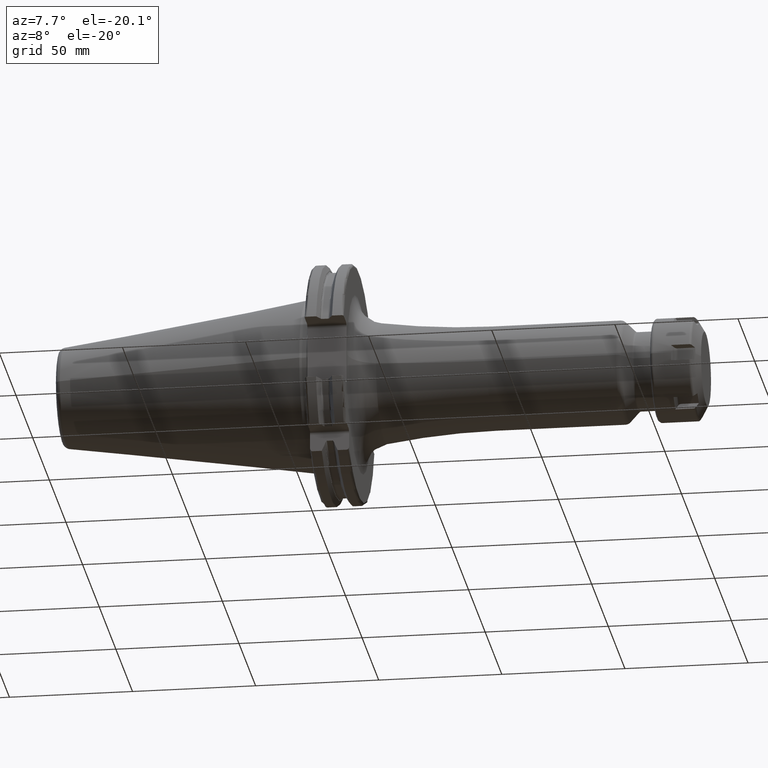
[diagram: clean part render]
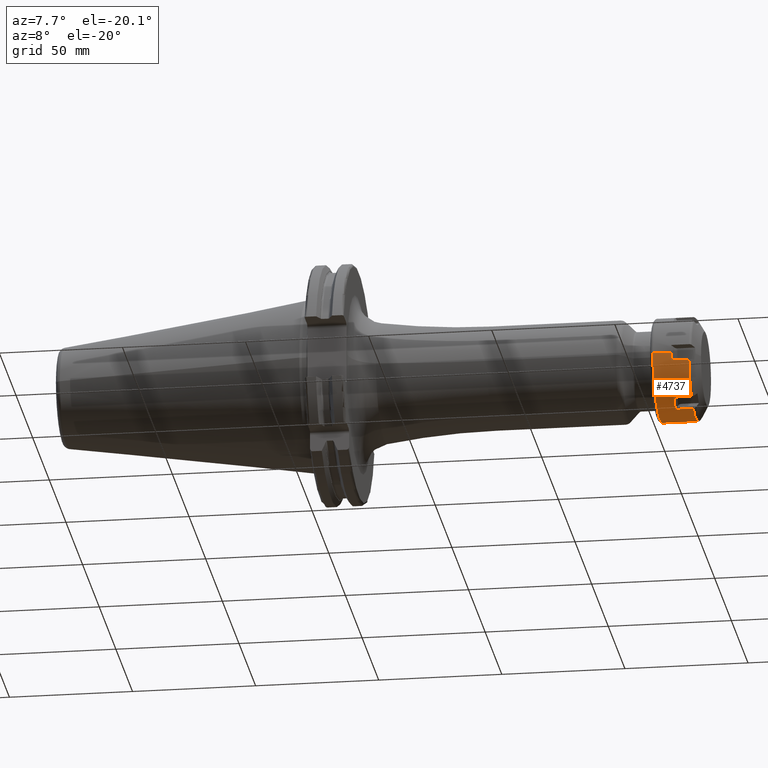
[diagram: same view with one face highlighted and labeled with its STEP entity id]
A machine part, auxiliary view. The second image highlights one B-rep face of the part: STEP entity #4737.
In plain terms, the highlighted cylindrical surface (partial cylindrical patch) has radius 21 mm, axis along (1, 0, 0).
Its self-contained STEP definition (entity closure, byte-faithful):
#3461=DIRECTION('',(9.999999999979E-1,1.452794262624E-6,-1.445246504649E-6));
#3462=VECTOR('',#3461,7.214202484702E0);
#3463=CARTESIAN_POINT('',(8.600008063689E0,7.578287451463E0,-1.958491746355E1));
#3464=LINE('',#3463,#3462);
#3477=DIRECTION('',(-1.E0,0.E0,0.E0));
#3478=VECTOR('',#3477,7.214210890546E0);
#3479=CARTESIAN_POINT('',(1.581421054838E1,1.317189611779E1,-1.635546247167E1));
#3480=LINE('',#3479,#3478);
#3559=CARTESIAN_POINT('',(1.581421054838E1,-1.317189611779E1,
-1.635546247167E1));
#3579=CARTESIAN_POINT('',(1.581421054838E1,-2.075019405E1,-3.229465418179E0));
#3581=CARTESIAN_POINT('',(1.581421054838E1,7.578297932215E0,-1.958492788985E1));
#3601=CARTESIAN_POINT('',(1.581421054838E1,-7.578297932215E0,
-1.958492788985E1));
#3609=CARTESIAN_POINT('',(1.581421054838E1,1.317189611779E1,-1.635546247167E1));
#3611=CARTESIAN_POINT('',(1.581421054838E1,2.075019405E1,-3.229465418179E0));
#3771=DIRECTION('',(-1.E0,3.594961594389E-14,0.E0));
#3772=VECTOR('',#3771,7.214210548375E0);
#3773=CARTESIAN_POINT('',(1.581421054838E1,-2.075019405E1,-3.229465418179E0));
#3774=LINE('',#3773,#3772);
#3786=CARTESIAN_POINT('',(1.581421054838E1,-1.792614389339E-14,0.E0));
#3787=DIRECTION('',(-1.E0,0.E0,0.E0));
#3788=DIRECTION('',(0.E0,9.881044785716E-1,-1.537840675323E-1));
#3789=AXIS2_PLACEMENT_3D('',#3786,#3787,#3788);
#3791=CARTESIAN_POINT('',(8.6E0,0.E0,0.E0));
#3792=DIRECTION('',(-1.E0,0.E0,0.E0));
#3793=DIRECTION('',(0.E0,1.E0,0.E0));
#3794=AXIS2_PLACEMENT_3D('',#3791,#3792,#3793);
#3796=DIRECTION('',(-1.E0,9.411549393136E-12,6.000804948597E-11));
#3797=VECTOR('',#3796,7.350000000040E0);
#3798=CARTESIAN_POINT('',(8.600000000040E0,2.099999999993E1,
-4.377820052165E-10));
#3799=LINE('',#3798,#3797);
#3800=CARTESIAN_POINT('',(1.25E0,0.E0,0.E0));
#3801=DIRECTION('',(-1.E0,0.E0,0.E0));
#3802=DIRECTION('',(0.E0,1.E0,0.E0));
#3803=AXIS2_PLACEMENT_3D('',#3800,#3801,#3802);
#3805=DIRECTION('',(-1.E0,-9.436200875805E-12,-6.000654573246E-11));
#3806=VECTOR('',#3805,7.350000000040E0);
#3807=CARTESIAN_POINT('',(8.600000000040E0,-2.099999999993E1,
4.377679851591E-10));
#3808=LINE('',#3807,#3806);
#3809=CARTESIAN_POINT('',(8.6E0,0.E0,0.E0));
#3810=DIRECTION('',(-1.E0,0.E0,0.E0));
#3811=DIRECTION('',(0.E0,-9.881044785716E-1,-1.537840675323E-1));
#3812=AXIS2_PLACEMENT_3D('',#3809,#3810,#3811);
#3814=CARTESIAN_POINT('',(1.581421054838E1,-1.792614389339E-14,0.E0));
#3815=DIRECTION('',(-1.E0,0.E0,0.E0));
#3816=DIRECTION('',(0.E0,-6.272331484661E-1,-7.788315462700E-1));
#3817=AXIS2_PLACEMENT_3D('',#3814,#3815,#3816);
#3819=CARTESIAN_POINT('',(1.581421054838E1,-1.792614389339E-14,0.E0));
#3820=DIRECTION('',(-1.E0,0.E0,0.E0));
#3821=DIRECTION('',(0.E0,3.608713301055E-1,-9.326156138023E-1));
#3822=AXIS2_PLACEMENT_3D('',#3819,#3820,#3821);
#3841=CARTESIAN_POINT('',(8.600000318507E0,-1.804967895792E-5,
1.352930437069E-5));
#3842=DIRECTION('',(-1.E0,0.E0,0.E0));
#3843=DIRECTION('',(0.E0,6.272333551021E-1,-7.788313798553E-1));
#3844=AXIS2_PLACEMENT_3D('',#3841,#3842,#3843);
#3860=DIRECTION('',(1.E0,0.E0,0.E0));
#3861=VECTOR('',#3860,7.214210548375E0);
#3862=CARTESIAN_POINT('',(8.6E0,2.075019405E1,-3.229465418179E0));
#3863=LINE('',#3862,#3861);
#4085=DIRECTION('',(9.999999999998E-1,6.709444709144E-7,9.098406604267E-8));
#4086=VECTOR('',#4085,7.214212575504E0);
#4087=CARTESIAN_POINT('',(8.599997972873E0,-1.317190095812E1,
-1.635546312805E1));
#4088=LINE('',#4087,#4086);
#4101=DIRECTION('',(-1.E0,0.E0,0.E0));
#4102=VECTOR('',#4101,7.214210815093E0);
#4103=CARTESIAN_POINT('',(1.581421054838E1,-7.578297932215E0,
-1.958492788985E1));
#4104=LINE('',#4103,#4102);
#4134=CARTESIAN_POINT('',(8.600000222181E0,-7.035000469932E-6,
-1.879731692430E-6));
#4135=DIRECTION('',(-1.E0,0.E0,0.E0));
#4136=DIRECTION('',(0.E0,-3.608710688571E-1,-9.326157148911E-1));
#4137=AXIS2_PLACEMENT_3D('',#4134,#4135,#4136);
#4153=CARTESIAN_POINT('',(1.25E0,2.1E1,0.E0));
#4154=CARTESIAN_POINT('',(1.25E0,-2.1E1,0.E0));
#4155=VERTEX_POINT('',#4153);
#4156=VERTEX_POINT('',#4154);
#4163=VERTEX_POINT('',#3611);
#4164=CARTESIAN_POINT('',(8.6E0,2.1E1,0.E0));
#4165=CARTESIAN_POINT('',(8.6E0,2.075019405E1,-3.229465418179E0));
#4166=VERTEX_POINT('',#4164);
#4167=VERTEX_POINT('',#4165);
#4208=VERTEX_POINT('',#3579);
#4209=CARTESIAN_POINT('',(8.6E0,-2.1E1,0.E0));
#4211=VERTEX_POINT('',#4209);
#4213=CARTESIAN_POINT('',(8.6E0,-2.075019405E1,-3.229465418179E0));
#4214=VERTEX_POINT('',#4213);
#4223=VERTEX_POINT('',#3559);
#4224=VERTEX_POINT('',#3601);
#4225=CARTESIAN_POINT('',(8.600000222181E0,-7.578297626635E0,
-1.958492710012E1));
#4226=CARTESIAN_POINT('',(8.600000222181E0,-1.317189658068E1,
-1.635546304645E1));
#4227=VERTEX_POINT('',#4225);
#4228=VERTEX_POINT('',#4226);
#4237=VERTEX_POINT('',#3581);
#4238=VERTEX_POINT('',#3609);
#4239=CARTESIAN_POINT('',(8.600000318507E0,1.317189540004E1,-1.635546158045E1));
#4240=CARTESIAN_POINT('',(8.600000318507E0,7.578298503418E0,-1.958492936603E1));
#4241=VERTEX_POINT('',#4239);
#4242=VERTEX_POINT('',#4240);
#4704=CARTESIAN_POINT('',(-1.E0,0.E0,0.E0));
#4705=DIRECTION('',(1.E0,0.E0,0.E0));
#4706=DIRECTION('',(0.E0,-1.E0,0.E0));
#4707=AXIS2_PLACEMENT_3D('',#4704,#4705,#4706);
#4708=CYLINDRICAL_SURFACE('',#4707,2.1E1);
#4710=ORIENTED_EDGE('',*,*,#4709,.F.);
#4711=ORIENTED_EDGE('',*,*,#4383,.F.);
#4712=ORIENTED_EDGE('',*,*,#4488,.F.);
#4714=ORIENTED_EDGE('',*,*,#4713,.F.);
#4716=ORIENTED_EDGE('',*,*,#4715,.F.);
#4718=ORIENTED_EDGE('',*,*,#4717,.T.);
#4720=ORIENTED_EDGE('',*,*,#4719,.T.);
#4722=ORIENTED_EDGE('',*,*,#4721,.F.);
#4724=ORIENTED_EDGE('',*,*,#4723,.F.);
#4725=ORIENTED_EDGE('',*,*,#4684,.F.);
#4726=ORIENTED_EDGE('',*,*,#4457,.F.);
#4728=ORIENTED_EDGE('',*,*,#4727,.F.);
#4730=ORIENTED_EDGE('',*,*,#4729,.F.);
#4732=ORIENTED_EDGE('',*,*,#4731,.F.);
#4733=ORIENTED_EDGE('',*,*,#4471,.F.);
#4734=ORIENTED_EDGE('',*,*,#4307,.F.);
#4735=EDGE_LOOP('',(#4710,#4711,#4712,#4714,#4716,#4718,#4720,#4722,#4724,#4725,
#4726,#4728,#4730,#4732,#4733,#4734));
#4736=FACE_OUTER_BOUND('',#4735,.F.);
#4737=ADVANCED_FACE('',(#4736),#4708,.T.);
#3790=CIRCLE('',#3789,2.1E1);
#3795=CIRCLE('',#3794,2.1E1);
#3804=CIRCLE('',#3803,2.1E1);
#3813=CIRCLE('',#3812,2.1E1);
#3818=CIRCLE('',#3817,2.1E1);
#3823=CIRCLE('',#3822,2.1E1);
#3845=CIRCLE('',#3844,2.100002071410E1);
#4138=CIRCLE('',#4137,2.099999486142E1);
#4307=EDGE_CURVE('',#4242,#4237,#3464,.T.);
#4383=EDGE_CURVE('',#4238,#4241,#3480,.T.);
#4457=EDGE_CURVE('',#4223,#4208,#3818,.T.);
#4471=EDGE_CURVE('',#4237,#4224,#3823,.T.);
#4488=EDGE_CURVE('',#4163,#4238,#3790,.T.);
#4684=EDGE_CURVE('',#4208,#4214,#3774,.T.);
#4709=EDGE_CURVE('',#4241,#4242,#3845,.T.);
#4713=EDGE_CURVE('',#4167,#4163,#3863,.T.);
#4715=EDGE_CURVE('',#4166,#4167,#3795,.T.);
#4717=EDGE_CURVE('',#4166,#4155,#3799,.T.);
#4719=EDGE_CURVE('',#4155,#4156,#3804,.T.);
#4721=EDGE_CURVE('',#4211,#4156,#3808,.T.);
#4723=EDGE_CURVE('',#4214,#4211,#3813,.T.);
#4727=EDGE_CURVE('',#4228,#4223,#4088,.T.);
#4729=EDGE_CURVE('',#4227,#4228,#4138,.T.);
#4731=EDGE_CURVE('',#4224,#4227,#4104,.T.);